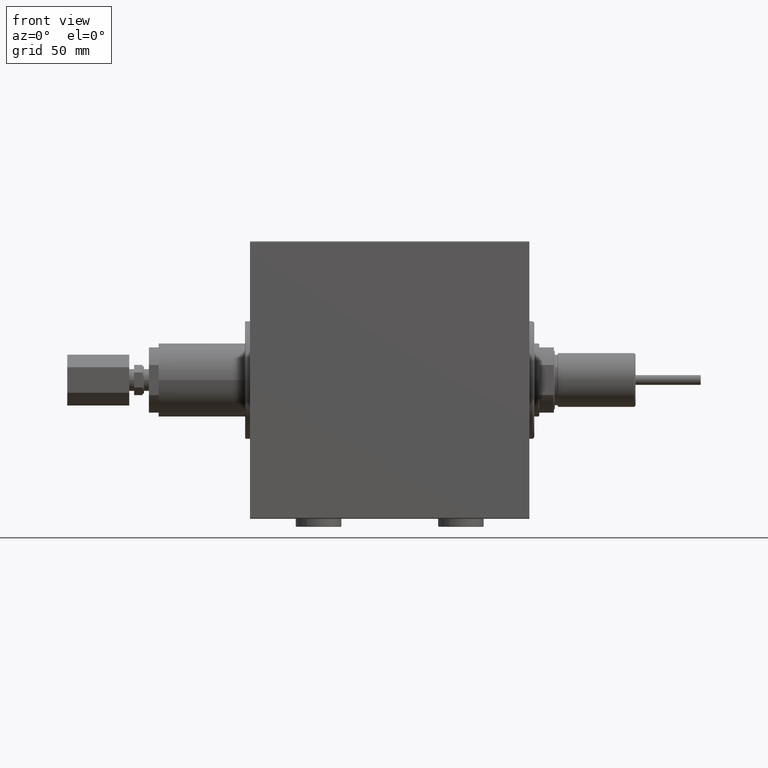
[diagram: clean part render]
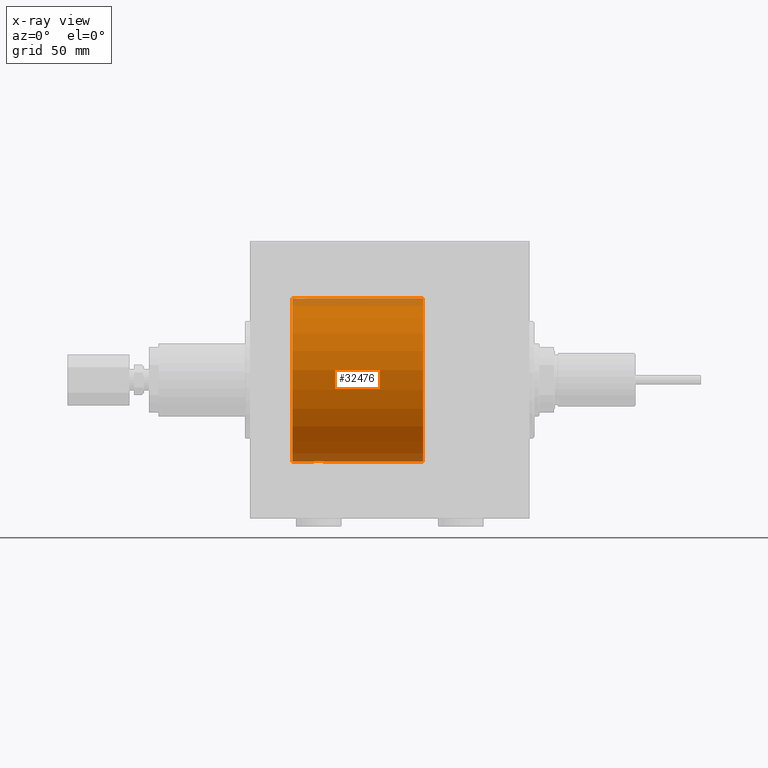
[diagram: x-ray — body ghosted, one internal face saturated and labeled with its STEP entity id]
A machine part, front view, then the same camera in x-ray: the body is ghosted and one INTERNAL B-rep face — a face not visible from any outside direction — is saturated and labeled: STEP entity #32476.
In plain terms, the highlighted cylindrical surface (partial cylindrical patch) has radius 50 mm, axis along (1, 0, -0).
Its self-contained STEP definition (entity closure, byte-faithful):
#304 = DIRECTION ( 'NONE',  ( -1.000000000000000000, 0.000000000000000000, 0.000000000000000000 ) ) ;
#559 = DIRECTION ( 'NONE',  ( -1.000000000000000000, -0.000000000000000000, -0.000000000000000000 ) ) ;
#562 = B_SPLINE_CURVE_WITH_KNOTS ( 'NONE', 3,
 ( #19620, #31934, #42789, #20354, #35631, #24056, #16661, #43041, #9018, #1844, #9258, #24298, #5547, #16896, #46982, #23319, #14383, #13676, #32889, #48171, #47931, #25250, #33124, #43985, #47696, #28704, #29179, #43747, #17849, #9974, #13913, #21550, #6267, #25014 ),
 .UNSPECIFIED., .F., .F.,
 ( 4, 2, 2, 2, 2, 2, 2, 2, 2, 2, 2, 2, 2, 2, 2, 2, 4 ),
 ( 3.774387792860857481E-18, 0.0008308394705804747525, 0.001661678941160945602, 0.002492518411741416560, 0.003323357882321887734, 0.004154197352902358475, 0.004985036823482828783, 0.005815876294063299957, 0.006646715764643771132, 0.007477555235224242307, 0.008308394705804713481, 0.009139234176385183789, 0.009970073646965654096, 0.01080091311754612614, 0.01163175258812659645, 0.01246259205870706849, 0.01329343152928753879 ),
 .UNSPECIFIED. ) ;
#1554 = CARTESIAN_POINT ( 'NONE',  ( 133.4499999999999886, 0.2774387832574446988, -50.00000000000000000 ) ) ;
#1844 = CARTESIAN_POINT ( 'NONE',  ( 143.0086300572496611, 3.201703158387191994, 49.89777173894965046 ) ) ;
#2186 = VERTEX_POINT ( 'NONE', #34634 ) ;
#2403 = ORIENTED_EDGE ( 'NONE', *, *, #30399, .F. ) ;
#3547 = VERTEX_POINT ( 'NONE', #31140 ) ;
#4562 = DIRECTION ( 'NONE',  ( 0.000000000000000000, 0.000000000000000000, 1.000000000000000000 ) ) ;
#4767 = CARTESIAN_POINT ( 'NONE',  ( 125.8198951369923435, 2.591239970584156449, -49.93334495304386422 ) ) ;
#5547 = CARTESIAN_POINT ( 'NONE',  ( 142.0828700758229957, 3.820198949706817171, 49.85396053238189751 ) ) ;
#6267 = CARTESIAN_POINT ( 'NONE',  ( 135.9500000000000455, 0.2774387832574382040, 50.00000000000000711 ) ) ;
#7496 = VERTEX_POINT ( 'NONE', #10250 ) ;
#8483 = CARTESIAN_POINT ( 'NONE',  ( 132.5789573085613711, 2.592639214541051729, -49.93326838038159821 ) ) ;
#8496 = VERTEX_POINT ( 'NONE', #8598 ) ;
#8598 = CARTESIAN_POINT ( 'NONE',  ( 135.9499999999999886, -2.480257572105383217E-23, 50.00000000000000000 ) ) ;
#8608 = ORIENTED_EDGE ( 'NONE', *, *, #18459, .T. ) ;
#8624 = EDGE_CURVE ( 'NONE', #18292, #2186, #25173, .T. ) ;
#8881 = CARTESIAN_POINT ( 'NONE',  ( 145.1999999999999886, 0.000000000000000000, 50.00000000000000000 ) ) ;
#9018 = CARTESIAN_POINT ( 'NONE',  ( 143.4006378122617491, 2.809844036175790372, 49.92137121633495411 ) ) ;
#9258 = CARTESIAN_POINT ( 'NONE',  ( 142.7947115506452462, 3.377583483857613977, 49.88603192934380104 ) ) ;
#9345 = EDGE_CURVE ( 'NONE', #28428, #31847, #19210, .T. ) ;
#9974 = CARTESIAN_POINT ( 'NONE',  ( 136.1669070468552434, 1.369053668635226373, 49.98191709664471460 ) ) ;
#10250 = CARTESIAN_POINT ( 'NONE',  ( 65.20000000000000284, 6.123233995736766085E-15, -50.00000000000000000 ) ) ;
#10716 = EDGE_CURVE ( 'NONE', #3547, #7496, #27028, .T. ) ;
#12185 = CARTESIAN_POINT ( 'NONE',  ( 131.7915786050509155, 3.379775232620403358, -49.88587880363004956 ) ) ;
#12438 = CARTESIAN_POINT ( 'NONE',  ( 133.3134723035161073, 1.104090919659210135, -49.98855088738324071 ) ) ;
#12514 = ORIENTED_EDGE ( 'NONE', *, *, #10716, .T. ) ;
#12831 = EDGE_LOOP ( 'NONE', ( #43767, #25351, #8608, #40797, #42509, #12514, #2403, #21886 ) ) ;
#12918 = CARTESIAN_POINT ( 'NONE',  ( 133.4499999999999886, 6.123233970934102801E-15, -50.00000000000000000 ) ) ;
#13676 = CARTESIAN_POINT ( 'NONE',  ( 139.9241931321524817, 4.250099715408711454, 49.81903905555740408 ) ) ;
#13913 = CARTESIAN_POINT ( 'NONE',  ( 136.0865276964838415, 1.104090919659202585, 49.98855088738324071 ) ) ;
#14383 = CARTESIAN_POINT ( 'NONE',  ( 140.4788714507149905, 4.249899732140182351, 49.81905611587625060 ) ) ;
#14466 = DIRECTION ( 'NONE',  ( 0.000000000000000000, 0.000000000000000000, 1.000000000000000000 ) ) ;
#16130 = CARTESIAN_POINT ( 'NONE',  ( 129.4758068678474956, 4.250099715408719447, -49.81903905555740408 ) ) ;
#16611 = CARTESIAN_POINT ( 'NONE',  ( 128.9211285492849584, 4.249899732140185904, -49.81905611587624350 ) ) ;
#16661 = CARTESIAN_POINT ( 'NONE',  ( 143.8885838399501438, 2.129315083715782819, 49.95517470752238864 ) ) ;
#16848 = CARTESIAN_POINT ( 'NONE',  ( 126.6052884493547310, 3.377583483857618862, -49.88603192934379393 ) ) ;
#16896 = CARTESIAN_POINT ( 'NONE',  ( 141.5714460322091384, 4.032152715176926527, 49.83726562785247438 ) ) ;
#17087 = CARTESIAN_POINT ( 'NONE',  ( 124.9499999999999744, -1.034414945328559854E-14, -50.00000000000000000 ) ) ;
#17828 = VECTOR ( 'NONE', #39204, 1000.000000000000000 ) ;
#17849 = CARTESIAN_POINT ( 'NONE',  ( 136.3801891891285720, 1.883929957684040257, 49.96515938649660171 ) ) ;
#18292 = VERTEX_POINT ( 'NONE', #19238 ) ;
#18459 = EDGE_CURVE ( 'NONE', #28428, #48137, #23919, .T. ) ;
#19210 = CIRCLE ( 'NONE', #45901, 50.00000000000000000 ) ;
#19238 = CARTESIAN_POINT ( 'NONE',  ( 124.9499999999999744, -1.034414945328559854E-14, -50.00000000000000000 ) ) ;
#19368 = FACE_OUTER_BOUND ( 'NONE', #12831, .T. ) ;
#19412 = DIRECTION ( 'NONE',  ( -1.000000000000000000, -0.000000000000000000, -0.000000000000000000 ) ) ;
#19620 = CARTESIAN_POINT ( 'NONE',  ( 144.4499999999999886, 3.884128014896634599E-15, 50.00000000000000000 ) ) ;
#19819 = CARTESIAN_POINT ( 'NONE',  ( 130.3027213200379038, 4.113850194901016444, -49.83050476025721309 ) ) ;
#20051 = LINE ( 'NONE', #37792, #27873 ) ;
#20354 = CARTESIAN_POINT ( 'NONE',  ( 144.3143643294342269, 1.100566060006326730, 49.98862465889503426 ) ) ;
#20782 = CARTESIAN_POINT ( 'NONE',  ( 131.0824439359570022, 3.820534283589335889, -49.85393595968218250 ) ) ;
#21550 = CARTESIAN_POINT ( 'NONE',  ( 135.9778058483677512, 0.5592384970569860281, 49.99761483193759659 ) ) ;
#21886 = ORIENTED_EDGE ( 'NONE', *, *, #8624, .T. ) ;
#22492 = CARTESIAN_POINT ( 'NONE',  ( 65.20000000000000284, 0.000000000000000000, 0.000000000000000000 ) ) ;
#23077 = AXIS2_PLACEMENT_3D ( 'NONE', #22492, #304, #41483 ) ;
#23319 = CARTESIAN_POINT ( 'NONE',  ( 140.7547403769280834, 4.222915468341958523, 49.82138079020267440 ) ) ;
#23517 = CARTESIAN_POINT ( 'NONE',  ( 133.0198108108713768, 1.883929957684052914, -49.96515938649660882 ) ) ;
#23599 = CARTESIAN_POINT ( 'NONE',  ( 145.1999999999999886, 0.000000000000000000, 50.00000000000000000 ) ) ;
#23919 = LINE ( 'NONE', #8881, #17828 ) ;
#24006 = CARTESIAN_POINT ( 'NONE',  ( 133.2330929531447055, 1.369053668635239029, -49.98191709664470750 ) ) ;
#24056 = CARTESIAN_POINT ( 'NONE',  ( 144.0191612011685152, 1.885236035486734130, 49.96510958966688065 ) ) ;
#24298 = CARTESIAN_POINT ( 'NONE',  ( 142.3300936179966811, 3.688265093516100990, 49.86402463145034147 ) ) ;
#24483 = CARTESIAN_POINT ( 'NONE',  ( 125.3808387988314337, 1.885236035486723916, -49.96510958966689486 ) ) ;
#25014 = CARTESIAN_POINT ( 'NONE',  ( 135.9499999999999886, -2.480257572105383217E-23, 50.00000000000000000 ) ) ;
#25173 = B_SPLINE_CURVE_WITH_KNOTS ( 'NONE', 3,
 ( #17087, #31410, #28183, #43225, #38803, #24483, #31650, #4767, #35345, #45957, #16848, #35110, #27947, #34864, #27218, #31168, #16611, #16130, #46691, #19819, #46453, #20782, #35823, #12185, #35582, #42990, #8483, #46213, #23517, #24006, #12438, #38555, #1554, #12918 ),
 .UNSPECIFIED., .F., .F.,
 ( 4, 2, 2, 2, 2, 2, 2, 2, 2, 2, 2, 2, 2, 2, 2, 2, 4 ),
 ( 1.786428331938383322E-19, 0.0008308394705804813662, 0.001661678941160954492, 0.002492518411741426968, 0.003323357882321900311, 0.004154197352902374088, 0.004985036823482846130, 0.005815876294063319039, 0.006646715764643793684, 0.007477555235224267460, 0.008308394705804741237, 0.009139234176385215014, 0.009970073646965688791, 0.01080091311754616257, 0.01163175258812663634, 0.01246259205870711012, 0.01329343152928758390 ),
 .UNSPECIFIED. ) ;
#25250 = CARTESIAN_POINT ( 'NONE',  ( 138.3175560640429467, 3.820534283589330116, 49.85393595968220382 ) ) ;
#25351 = ORIENTED_EDGE ( 'NONE', *, *, #9345, .F. ) ;
#25914 = VECTOR ( 'NONE', #43538, 1000.000000000000000 ) ;
#27028 = CIRCLE ( 'NONE', #23077, 50.00000000000000000 ) ;
#27218 = CARTESIAN_POINT ( 'NONE',  ( 128.0965378872132305, 4.113772393339280242, -49.83051149236716526 ) ) ;
#27379 = EDGE_CURVE ( 'NONE', #8496, #3547, #46047, .T. ) ;
#27873 = VECTOR ( 'NONE', #559, 1000.000000000000000 ) ;
#27947 = CARTESIAN_POINT ( 'NONE',  ( 127.3171299241769532, 3.820198949706819835, -49.85396053238189040 ) ) ;
#28183 = CARTESIAN_POINT ( 'NONE',  ( 124.9775830999468269, 0.5571669497596777321, -49.99763400332480501 ) ) ;
#28428 = VERTEX_POINT ( 'NONE', #48754 ) ;
#28704 = CARTESIAN_POINT ( 'NONE',  ( 136.9968900733967700, 2.807369215369744708, 49.92152015083318162 ) ) ;
#29179 = CARTESIAN_POINT ( 'NONE',  ( 136.8210426914385778, 2.592639214541038406, 49.93326838038159821 ) ) ;
#29946 = CARTESIAN_POINT ( 'NONE',  ( 145.1999999999999886, 0.000000000000000000, 0.000000000000000000 ) ) ;
#30399 = EDGE_CURVE ( 'NONE', #18292, #7496, #44254, .T. ) ;
#31140 = CARTESIAN_POINT ( 'NONE',  ( 65.20000000000000284, 0.000000000000000000, 50.00000000000000000 ) ) ;
#31168 = CARTESIAN_POINT ( 'NONE',  ( 128.6452596230718655, 4.222915468341961187, -49.82138079020265309 ) ) ;
#31197 = CARTESIAN_POINT ( 'NONE',  ( 145.1999999999999886, 6.123233995736766085E-15, -50.00000000000000000 ) ) ;
#31338 = VECTOR ( 'NONE', #19412, 1000.000000000000000 ) ;
#31410 = CARTESIAN_POINT ( 'NONE',  ( 124.9499999999999460, 0.2809437491437452583, -50.00000000000000711 ) ) ;
#31650 = CARTESIAN_POINT ( 'NONE',  ( 125.5114161600497908, 2.129315083715778822, -49.95517470752238154 ) ) ;
#31847 = VERTEX_POINT ( 'NONE', #31197 ) ;
#31934 = CARTESIAN_POINT ( 'NONE',  ( 144.4499999999999602, 0.2809437491437555834, 50.00000000000000000 ) ) ;
#32476 = ADVANCED_FACE ( 'NONE', ( #19368 ), #33904, .F. ) ;
#32797 = CARTESIAN_POINT ( 'NONE',  ( 144.4499999999999886, 3.884128014896634599E-15, 50.00000000000000000 ) ) ;
#32889 = CARTESIAN_POINT ( 'NONE',  ( 139.6424768969731360, 4.222431257622154099, 49.82142152089561904 ) ) ;
#32963 = CARTESIAN_POINT ( 'NONE',  ( 145.1999999999999886, 0.000000000000000000, 0.000000000000000000 ) ) ;
#33124 = CARTESIAN_POINT ( 'NONE',  ( 138.0688318623413977, 3.687449343139589164, 49.86408027804462506 ) ) ;
#33904 = CYLINDRICAL_SURFACE ( 'NONE', #48786, 50.00000000000000000 ) ;
#34634 = CARTESIAN_POINT ( 'NONE',  ( 133.4499999999999886, 6.123233970934102801E-15, -50.00000000000000000 ) ) ;
#34864 = CARTESIAN_POINT ( 'NONE',  ( 127.8285539677908815, 4.032152715176931856, -49.83726562785247438 ) ) ;
#35110 = CARTESIAN_POINT ( 'NONE',  ( 127.0699063820032393, 3.688265093516105431, -49.86402463145032016 ) ) ;
#35345 = CARTESIAN_POINT ( 'NONE',  ( 125.9993621877381571, 2.809844036175767723, -49.92137121633495411 ) ) ;
#35582 = CARTESIAN_POINT ( 'NONE',  ( 132.0062131493859852, 3.204122793140535386, -49.89762612798256214 ) ) ;
#35631 = CARTESIAN_POINT ( 'NONE',  ( 144.2325738856855821, 1.370567417712649894, 49.98187507657574713 ) ) ;
#35823 = CARTESIAN_POINT ( 'NONE',  ( 131.3311681376586080, 3.687449343139602043, -49.86408027804463217 ) ) ;
#37792 = CARTESIAN_POINT ( 'NONE',  ( 145.1999999999999886, 6.123233995736766085E-15, -50.00000000000000000 ) ) ;
#38101 = DIRECTION ( 'NONE',  ( -1.000000000000000000, -0.000000000000000000, -0.000000000000000000 ) ) ;
#38555 = CARTESIAN_POINT ( 'NONE',  ( 133.4221941516322829, 0.5592384970569919123, -49.99761483193759659 ) ) ;
#38803 = CARTESIAN_POINT ( 'NONE',  ( 125.1674261143143667, 1.370567417712635683, -49.98187507657573292 ) ) ;
#39204 = DIRECTION ( 'NONE',  ( -1.000000000000000000, -0.000000000000000000, -0.000000000000000000 ) ) ;
#39842 = CARTESIAN_POINT ( 'NONE',  ( 145.1999999999999886, 6.123233995736766085E-15, -50.00000000000000000 ) ) ;
#40797 = ORIENTED_EDGE ( 'NONE', *, *, #46279, .T. ) ;
#41483 = DIRECTION ( 'NONE',  ( 0.000000000000000000, 0.000000000000000000, 1.000000000000000000 ) ) ;
#42509 = ORIENTED_EDGE ( 'NONE', *, *, #27379, .T. ) ;
#42789 = CARTESIAN_POINT ( 'NONE',  ( 144.4224169000531219, 0.5571669497596967169, 49.99763400332481922 ) ) ;
#42990 = CARTESIAN_POINT ( 'NONE',  ( 132.4031099266031788, 2.807369215369753590, -49.92152015083319583 ) ) ;
#43041 = CARTESIAN_POINT ( 'NONE',  ( 143.5801048630076195, 2.591239970584158225, 49.93334495304385712 ) ) ;
#43225 = CARTESIAN_POINT ( 'NONE',  ( 125.0856356705657078, 1.100566060006310964, -49.98862465889502715 ) ) ;
#43538 = DIRECTION ( 'NONE',  ( -1.000000000000000000, -0.000000000000000000, -0.000000000000000000 ) ) ;
#43747 = CARTESIAN_POINT ( 'NONE',  ( 136.5132776566072437, 2.132418568805250381, 49.95503838744803460 ) ) ;
#43767 = ORIENTED_EDGE ( 'NONE', *, *, #45214, .F. ) ;
#43985 = CARTESIAN_POINT ( 'NONE',  ( 137.6084213949490334, 3.379775232620390923, 49.88587880363006377 ) ) ;
#44254 = LINE ( 'NONE', #39842, #25914 ) ;
#45214 = EDGE_CURVE ( 'NONE', #31847, #2186, #20051, .T. ) ;
#45901 = AXIS2_PLACEMENT_3D ( 'NONE', #32963, #48005, #14466 ) ;
#45957 = CARTESIAN_POINT ( 'NONE',  ( 126.3913699427504156, 3.201703158387173342, -49.89777173894966467 ) ) ;
#46047 = LINE ( 'NONE', #23599, #31338 ) ;
#46213 = CARTESIAN_POINT ( 'NONE',  ( 132.8867223433926767, 2.132418568805264592, -49.95503838744802749 ) ) ;
#46279 = EDGE_CURVE ( 'NONE', #48137, #8496, #562, .T. ) ;
#46453 = CARTESIAN_POINT ( 'NONE',  ( 130.5677210904040635, 4.033536463572231057, -49.83715477915254155 ) ) ;
#46691 = CARTESIAN_POINT ( 'NONE',  ( 129.7575231030268696, 4.222431257622161205, -49.82142152089562614 ) ) ;
#46982 = CARTESIAN_POINT ( 'NONE',  ( 141.3034621127866899, 4.113772393339282019, 49.83051149236716526 ) ) ;
#47696 = CARTESIAN_POINT ( 'NONE',  ( 137.3937868506139637, 3.204122793140527836, 49.89762612798256924 ) ) ;
#47931 = CARTESIAN_POINT ( 'NONE',  ( 138.8322789095959422, 4.033536463572224839, 49.83715477915254155 ) ) ;
#48005 = DIRECTION ( 'NONE',  ( -1.000000000000000000, 0.000000000000000000, 0.000000000000000000 ) ) ;
#48137 = VERTEX_POINT ( 'NONE', #32797 ) ;
#48171 = CARTESIAN_POINT ( 'NONE',  ( 139.0972786799620451, 4.113850194901012003, 49.83050476025722020 ) ) ;
#48754 = CARTESIAN_POINT ( 'NONE',  ( 145.1999999999999886, 0.000000000000000000, 50.00000000000000000 ) ) ;
#48786 = AXIS2_PLACEMENT_3D ( 'NONE', #29946, #38101, #4562 ) ;